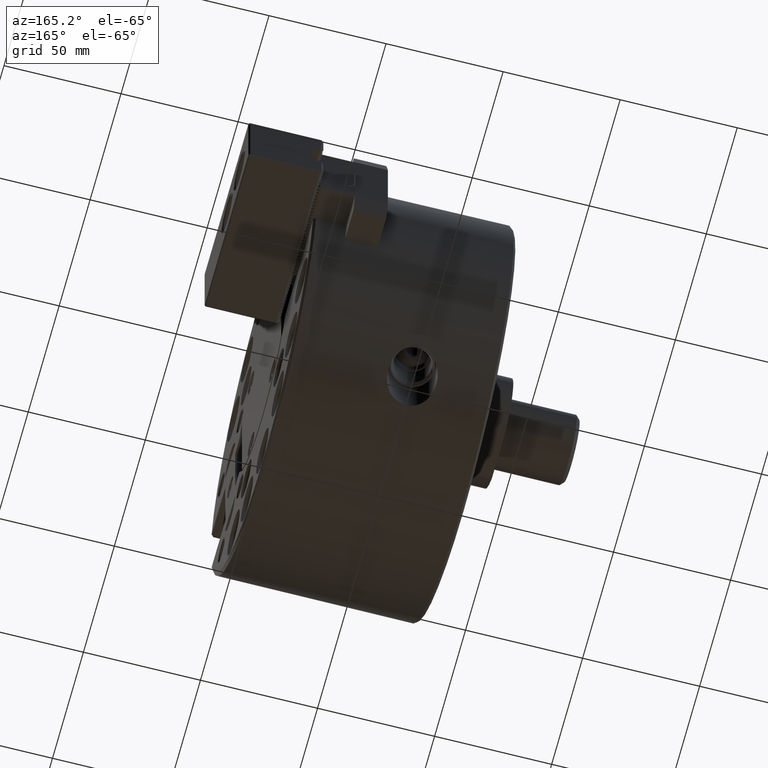
[diagram: clean part render]
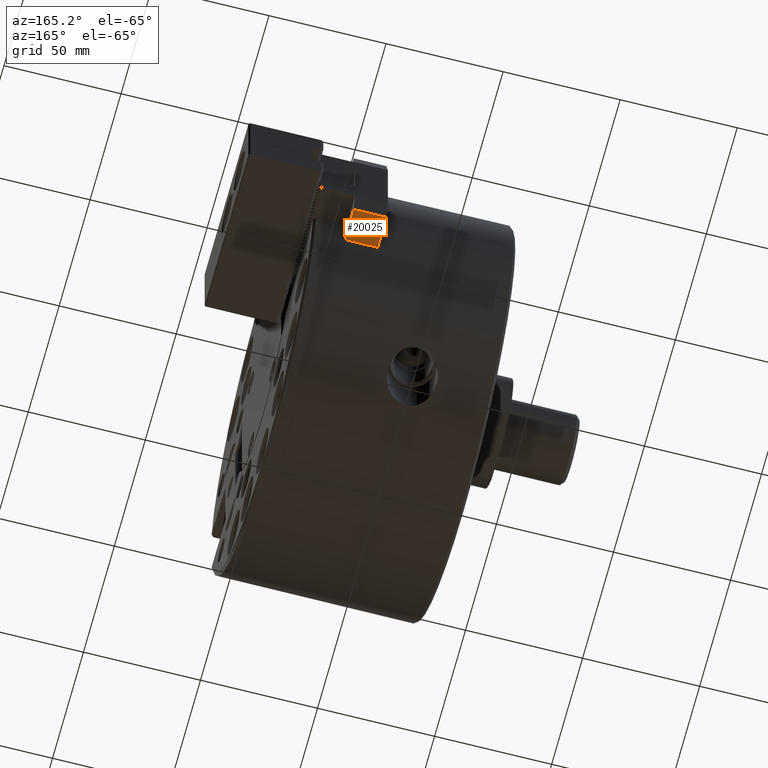
[diagram: same view with one face highlighted and labeled with its STEP entity id]
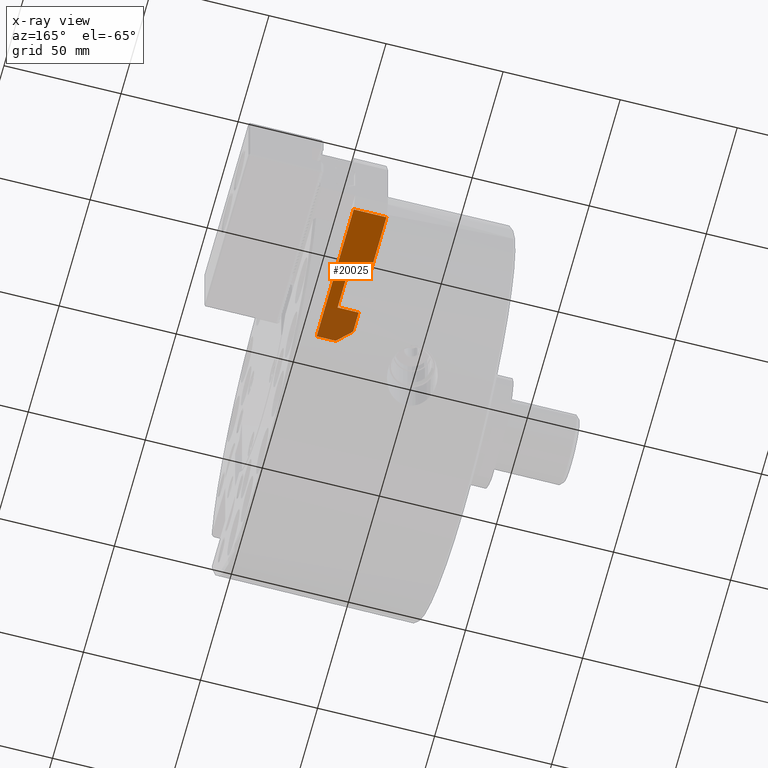
[diagram: x-ray of the same camera — body ghosted, the highlighted face saturated]
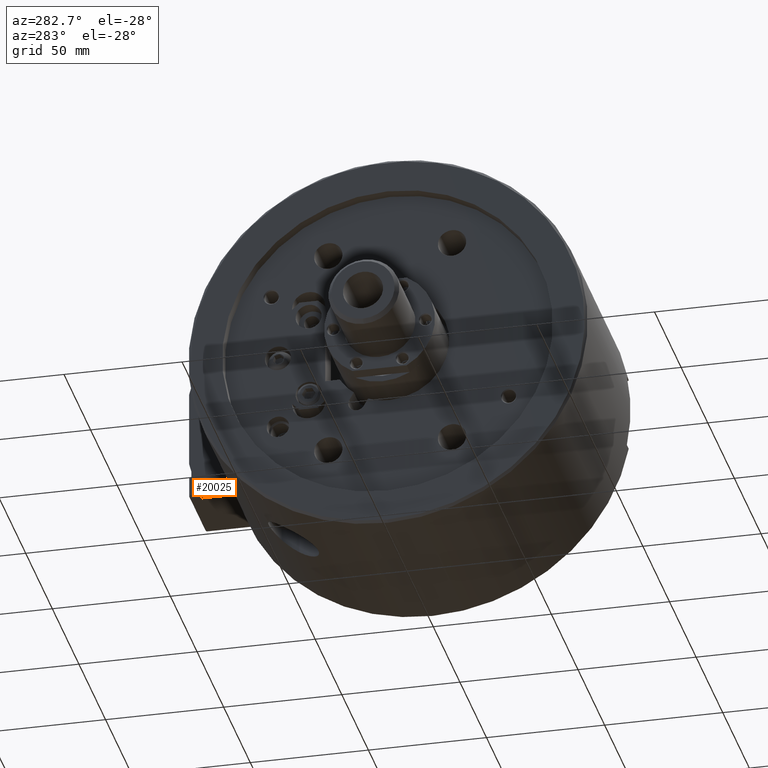
[diagram: same view with one face highlighted and labeled with its STEP entity id]
A machine part, auxiliary view. The second image highlights one B-rep face of the part: STEP entity #20025.
The next image is the same camera in x-ray: the body ghosted, the highlighted face saturated — about 26% of this face is hidden behind the body in this view.
A second angle (auxiliary view) of the same face is appended — the face is thin or edge-on in the first view.
In plain terms, the highlighted planar face has unit normal (0, 0, 1).
Its self-contained STEP definition (entity closure, byte-faithful):
#693=LINE('',#30059,#2810);
#840=LINE('',#30321,#2957);
#841=LINE('',#30324,#2958);
#842=LINE('',#30325,#2959);
#843=LINE('',#30327,#2960);
#844=LINE('',#30329,#2961);
#845=LINE('',#30331,#2962);
#846=LINE('',#30333,#2963);
#847=LINE('',#30335,#2964);
#2810=VECTOR('',#24266,1000.);
#2957=VECTOR('',#24457,1000.);
#2958=VECTOR('',#24458,1000.);
#2959=VECTOR('',#24459,1000.);
#2960=VECTOR('',#24460,1000.);
#2961=VECTOR('',#24461,1000.);
#2962=VECTOR('',#24462,1000.);
#2963=VECTOR('',#24463,1000.);
#2964=VECTOR('',#24464,1000.);
#5770=ORIENTED_EDGE('',*,*,#10878,.T.);
#5771=ORIENTED_EDGE('',*,*,#10879,.F.);
#5772=ORIENTED_EDGE('',*,*,#10720,.F.);
#5773=ORIENTED_EDGE('',*,*,#10880,.F.);
#5774=ORIENTED_EDGE('',*,*,#10881,.F.);
#5775=ORIENTED_EDGE('',*,*,#10882,.F.);
#5776=ORIENTED_EDGE('',*,*,#10883,.F.);
#5777=ORIENTED_EDGE('',*,*,#10884,.F.);
#5778=ORIENTED_EDGE('',*,*,#10885,.T.);
#10720=EDGE_CURVE('',#13457,#13458,#693,.T.);
#10878=EDGE_CURVE('',#13551,#13552,#840,.T.);
#10879=EDGE_CURVE('',#13458,#13552,#841,.T.);
#10880=EDGE_CURVE('',#13553,#13457,#842,.T.);
#10881=EDGE_CURVE('',#13554,#13553,#843,.T.);
#10882=EDGE_CURVE('',#13555,#13554,#844,.T.);
#10883=EDGE_CURVE('',#13556,#13555,#845,.T.);
#10884=EDGE_CURVE('',#13557,#13556,#846,.T.);
#10885=EDGE_CURVE('',#13557,#13551,#847,.T.);
#13457=VERTEX_POINT('',#30058);
#13458=VERTEX_POINT('',#30060);
#13551=VERTEX_POINT('',#30322);
#13552=VERTEX_POINT('',#30323);
#13553=VERTEX_POINT('',#30326);
#13554=VERTEX_POINT('',#30328);
#13555=VERTEX_POINT('',#30330);
#13556=VERTEX_POINT('',#30332);
#13557=VERTEX_POINT('',#30334);
#16080=EDGE_LOOP('',(#5770,#5771,#5772,#5773,#5774,#5775,#5776,#5777,#5778));
#17716=FACE_BOUND('',#16080,.T.);
#18994=PLANE('',#21689);
#20025=ADVANCED_FACE('',(#17716),#18994,.F.);
#21689=AXIS2_PLACEMENT_3D('',#30320,#24455,#24456);
#24266=DIRECTION('',(0.707106781186548,-0.707106781186547,0.));
#24455=DIRECTION('',(0.,0.,1.));
#24456=DIRECTION('',(1.,0.,0.));
#24457=DIRECTION('',(0.,-1.,0.));
#24458=DIRECTION('',(1.,0.,0.));
#24459=DIRECTION('',(0.,-1.,0.));
#24460=DIRECTION('',(-1.,0.,0.));
#24461=DIRECTION('',(2.16840434497101E-16,-1.,0.));
#24462=DIRECTION('',(1.,7.70988211545248E-16,0.));
#24463=DIRECTION('',(0.,-1.,0.));
#24464=DIRECTION('',(1.,0.,0.));
#30058=CARTESIAN_POINT('',(-28.,40.7889876352099,-25.));
#30059=CARTESIAN_POINT('',(-28.,40.7889876352099,-25.));
#30060=CARTESIAN_POINT('',(-22.0980762113533,34.8870638465632,-25.));
#30320=CARTESIAN_POINT('',(-14.,97.0389876352099,-25.));
#30321=CARTESIAN_POINT('',(-14.,97.0389876352099,-25.));
#30322=CARTESIAN_POINT('',(-14.,94.6944322014376,-25.));
#30323=CARTESIAN_POINT('',(-14.,34.8870638465632,-25.));
#30324=CARTESIAN_POINT('',(-28.,34.8870638465632,-25.));
#30325=CARTESIAN_POINT('',(-28.,97.0389876352099,-25.));
#30326=CARTESIAN_POINT('',(-28.,49.7889876352099,-25.));
#30327=CARTESIAN_POINT('',(-19.,49.7889876352099,-25.));
#30328=CARTESIAN_POINT('',(-19.,49.7889876352099,-25.));
#30329=CARTESIAN_POINT('',(-19.,65.7889876352099,-25.));
#30330=CARTESIAN_POINT('',(-19.,65.7889876352099,-25.));
#30331=CARTESIAN_POINT('',(-28.,65.7889876352098,-25.));
#30332=CARTESIAN_POINT('',(-28.,65.7889876352098,-25.));
#30333=CARTESIAN_POINT('',(-28.,97.0389876352099,-25.));
#30334=CARTESIAN_POINT('',(-28.,94.6944322014376,-25.));
#30335=CARTESIAN_POINT('',(-28.,94.6944322014376,-25.));